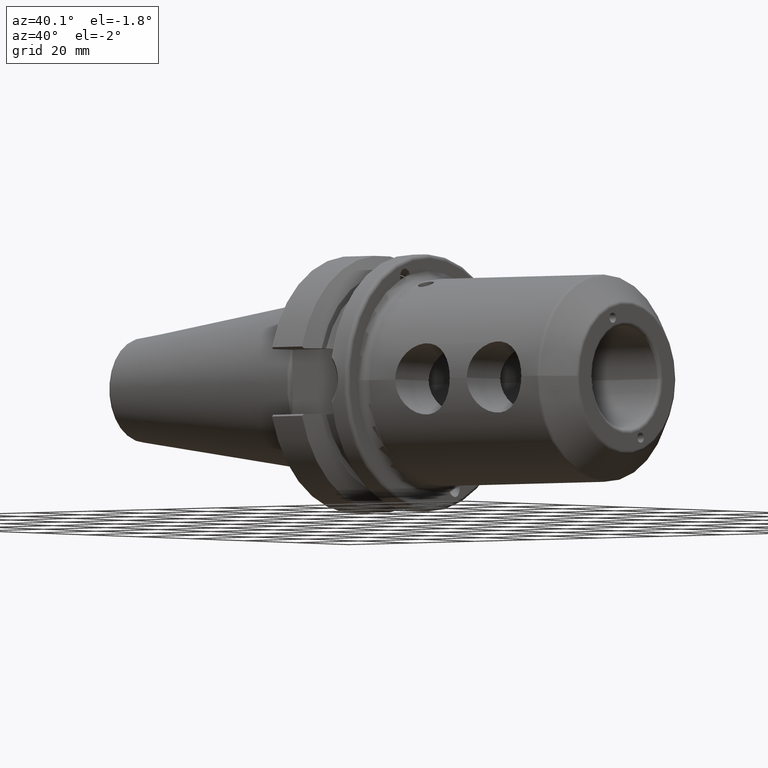
[diagram: clean part render]
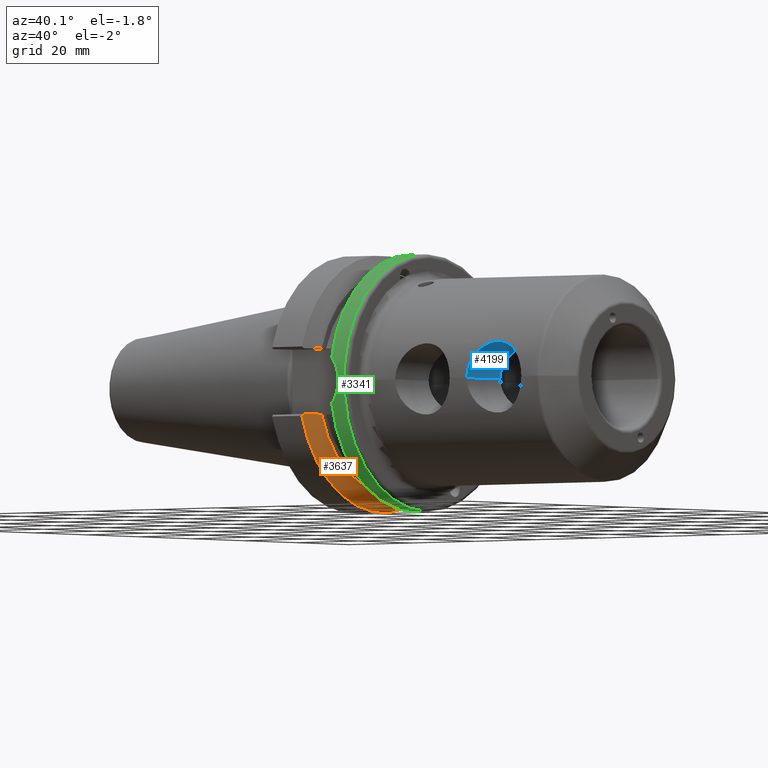
[diagram: same view with three faces highlighted in distinct colors, each labeled with its STEP entity id]
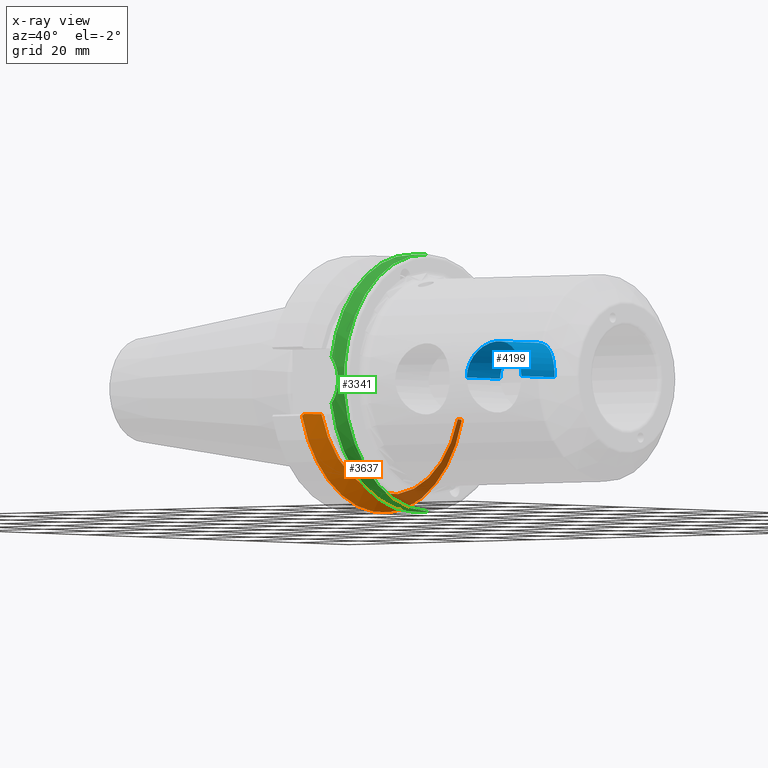
[diagram: x-ray of the same camera — body ghosted, the three highlighted faces saturated]
A machine part, auxiliary view with three faces highlighted in distinct colors.
The next image is the same camera in x-ray (body ghosted, the three faces saturated) — at least one of them is partly hidden behind the body in this view.
Their STEP definitions:

[orange] entity #3637 — the highlighted conical surface has half-angle 60 deg.
#999=CARTESIAN_POINT('',(1.41E1,-2.589378524176E1,-8.05E0));
#1000=CARTESIAN_POINT('',(1.386450341249E1,-2.632093406585E1,-8.05E0));
#1001=CARTESIAN_POINT('',(1.338588596161E1,-2.718719807101E1,-8.05E0));
#1002=CARTESIAN_POINT('',(1.264535505638E1,-2.852228716965E1,-8.05E0));
#1003=CARTESIAN_POINT('',(1.213636940407E1,-2.943672353446E1,-8.05E0));
#1004=CARTESIAN_POINT('',(1.187809346105E1,-2.99E1,-8.05E0));
#1006=CARTESIAN_POINT('',(1.41E1,0.E0,0.E0));
#1007=DIRECTION('',(1.E0,0.E0,0.E0));
#1008=DIRECTION('',(0.E0,-9.549178917964E-1,-2.968700387830E-1));
#1009=AXIS2_PLACEMENT_3D('',#1006,#1007,#1008);
#1011=CARTESIAN_POINT('',(1.187809346105E1,2.99E1,-8.05E0));
#1012=CARTESIAN_POINT('',(1.213608053432E1,2.943724168785E1,-8.05E0));
#1013=CARTESIAN_POINT('',(1.264468269184E1,2.852349654788E1,-8.05E0));
#1014=CARTESIAN_POINT('',(1.338523678300E1,2.718837129527E1,-8.05E0));
#1015=CARTESIAN_POINT('',(1.386422607045E1,2.632143711487E1,-8.05E0));
#1016=CARTESIAN_POINT('',(1.41E1,2.589378524176E1,-8.05E0));
#1018=CARTESIAN_POINT('',(1.187809346105E1,2.99E1,-8.05E0));
#1019=CARTESIAN_POINT('',(1.184412243022E1,2.994800919416E1,-8.098009194156E0));
#1020=CARTESIAN_POINT('',(1.177593456126E1,3.004428424075E1,-8.194284240747E0));
#1021=CARTESIAN_POINT('',(1.167291601044E1,3.018946614020E1,-8.339466140200E0));
#1022=CARTESIAN_POINT('',(1.160374493301E1,3.028676841650E1,-8.436768416504E0));
#1023=CARTESIAN_POINT('',(1.15690365E1,3.033554803451E1,-8.485548034509E0));
#1025=CARTESIAN_POINT('',(1.15690365E1,0.E0,0.E0));
#1026=DIRECTION('',(-1.E0,0.E0,0.E0));
#1027=DIRECTION('',(0.E0,9.630332709368E-1,-2.693824772860E-1));
#1028=AXIS2_PLACEMENT_3D('',#1025,#1026,#1027);
#1030=CARTESIAN_POINT('',(1.15690365E1,-3.033554803451E1,-8.485548034509E0));
#1031=CARTESIAN_POINT('',(1.162109299730E1,-3.026238725388E1,
-8.412387253883E0));
#1032=CARTESIAN_POINT('',(1.172465915984E1,-3.011663519535E1,
-8.266635195345E0));
#1033=CARTESIAN_POINT('',(1.182713113718E1,-2.997202195639E1,
-8.122021956386E0));
#1034=CARTESIAN_POINT('',(1.187809346105E1,-2.99E1,-8.05E0));
#2267=CARTESIAN_POINT('',(1.41E1,2.589378524176E1,-8.05E0));
#2269=VERTEX_POINT('',#2267);
#2363=VERTEX_POINT('',#1018);
#2364=VERTEX_POINT('',#1023);
#2379=CARTESIAN_POINT('',(1.15690365E1,-3.033554803451E1,-8.485548034509E0));
#2381=VERTEX_POINT('',#2379);
#2393=VERTEX_POINT('',#999);
#2394=VERTEX_POINT('',#1004);
#3621=CARTESIAN_POINT('',(1.283451825E1,0.E0,0.E0));
#3622=DIRECTION('',(-1.E0,0.E0,0.E0));
#3623=DIRECTION('',(0.E0,0.E0,-1.E0));
#3624=AXIS2_PLACEMENT_3D('',#3621,#3622,#3623);
#3625=CONICAL_SURFACE('',#3624,2.930812131295E1,6.E1);
#3626=ORIENTED_EDGE('',*,*,#3432,.F.);
#3628=ORIENTED_EDGE('',*,*,#3627,.T.);
#3630=ORIENTED_EDGE('',*,*,#3629,.F.);
#3632=ORIENTED_EDGE('',*,*,#3631,.T.);
#3633=ORIENTED_EDGE('',*,*,#3548,.T.);
#3634=ORIENTED_EDGE('',*,*,#3594,.T.);
#3635=EDGE_LOOP('',(#3626,#3628,#3630,#3632,#3633,#3634));
#3636=FACE_OUTER_BOUND('',#3635,.F.);
#3637=ADVANCED_FACE('',(#3636),#3625,.T.);
#1005=B_SPLINE_CURVE_WITH_KNOTS('',3,(#999,#1000,#1001,#1002,#1003,#1004),
.UNSPECIFIED.,.F.,.F.,(4,1,1,4),(0.E0,3.333333333333E-1,6.666666666667E-1,1.E0),
.UNSPECIFIED.);
#1010=CIRCLE('',#1009,2.711624262590E1);
#1017=B_SPLINE_CURVE_WITH_KNOTS('',3,(#1011,#1012,#1013,#1014,#1015,#1016),
.UNSPECIFIED.,.F.,.F.,(4,1,1,4),(0.E0,3.333333333333E-1,6.666666666667E-1,1.E0),
.UNSPECIFIED.);
#1024=B_SPLINE_CURVE_WITH_KNOTS('',3,(#1018,#1019,#1020,#1021,#1022,#1023),
.UNSPECIFIED.,.F.,.F.,(4,1,1,4),(0.E0,3.333333333333E-1,6.666666666667E-1,1.E0),
.UNSPECIFIED.);
#1029=CIRCLE('',#1028,3.15E1);
#1035=B_SPLINE_CURVE_WITH_KNOTS('',3,(#1030,#1031,#1032,#1033,#1034),
.UNSPECIFIED.,.F.,.F.,(4,1,4),(0.E0,5.E-1,1.E0),.UNSPECIFIED.);
#3432=EDGE_CURVE('',#2393,#2394,#1005,.T.);
#3548=EDGE_CURVE('',#2364,#2381,#1029,.T.);
#3594=EDGE_CURVE('',#2381,#2394,#1035,.T.);
#3627=EDGE_CURVE('',#2393,#2269,#1010,.T.);
#3629=EDGE_CURVE('',#2363,#2269,#1017,.T.);
#3631=EDGE_CURVE('',#2363,#2364,#1024,.T.);

[blue] entity #4199 — the highlighted cylindrical surface (edge-blend (fillet) strip) has radius 8.7312 mm, axis along (0, -1, 0).
#1558=CARTESIAN_POINT('',(6.016875E1,-2.54E1,0.E0));
#1559=CARTESIAN_POINT('',(6.016875E1,-2.54E1,5.471541523208E-1));
#1560=CARTESIAN_POINT('',(6.026601058927E1,-2.536620185117E1,1.637856000397E0));
#1561=CARTESIAN_POINT('',(6.077266413984E1,-2.519626685740E1,3.348794072300E0));
#1562=CARTESIAN_POINT('',(6.157529329447E1,-2.494625122253E1,4.849102851290E0));
#1563=CARTESIAN_POINT('',(6.262862986730E1,-2.465423278890E1,6.150742026221E0));
#1564=CARTESIAN_POINT('',(6.390297428901E1,-2.435777429886E1,7.224223509934E0));
#1565=CARTESIAN_POINT('',(6.539604849168E1,-2.408980908117E1,8.063716489680E0));
#1566=CARTESIAN_POINT('',(6.714359786386E1,-2.389512897658E1,8.615495260512E0));
#1567=CARTESIAN_POINT('',(6.885944495498E1,-2.383241776306E1,8.784367982431E0));
#1568=CARTESIAN_POINT('',(7.055647560547E1,-2.388836695680E1,8.633876915436E0));
#1569=CARTESIAN_POINT('',(7.230573553807E1,-2.407536904516E1,8.106075182592E0));
#1570=CARTESIAN_POINT('',(7.381932053991E1,-2.434146444873E1,7.278776410414E0));
#1571=CARTESIAN_POINT('',(7.512077461497E1,-2.464101741862E1,6.203903082927E0));
#1572=CARTESIAN_POINT('',(7.619621556213E1,-2.493768868428E1,4.894007680138E0));
#1573=CARTESIAN_POINT('',(7.701423603237E1,-2.519194748185E1,3.382899038663E0));
#1574=CARTESIAN_POINT('',(7.753084560921E1,-2.536510691937E1,1.660166932135E0));
#1575=CARTESIAN_POINT('',(7.763125E1,-2.54E1,5.552987864160E-1));
#1576=CARTESIAN_POINT('',(7.763125E1,-2.54E1,0.E0));
#1683=CARTESIAN_POINT('',(7.763125E1,-1.27E1,0.E0));
#1684=CARTESIAN_POINT('',(7.763125E1,-1.27E1,5.661935306312E-1));
#1685=CARTESIAN_POINT('',(7.752553783016E1,-1.262684798743E1,1.688087921948E0));
#1686=CARTESIAN_POINT('',(7.701024620202E1,-1.227815083603E1,3.383879836230E0));
#1687=CARTESIAN_POINT('',(7.622639412554E1,-1.177152905001E1,4.840683484220E0));
#1688=CARTESIAN_POINT('',(7.520780875832E1,-1.116052145721E1,6.109827587186E0));
#1689=CARTESIAN_POINT('',(7.396659197877E1,-1.050104614518E1,7.173649881206E0));
#1690=CARTESIAN_POINT('',(7.252148209032E1,-9.873121113103E0,8.005295476160E0));
#1691=CARTESIAN_POINT('',(7.088017759840E1,-9.383627672722E0,8.562817609221E0));
#1692=CARTESIAN_POINT('',(6.921688633217E1,-9.184130795490E0,8.770999244271E0));
#1693=CARTESIAN_POINT('',(6.770527928967E1,-9.253169994369E0,8.700442630746E0));
#1694=CARTESIAN_POINT('',(6.598363393472E1,-9.628184328064E0,8.292535803717E0));
#1695=CARTESIAN_POINT('',(6.444658735475E1,-1.021469726235E1,7.573215523381E0));
#1696=CARTESIAN_POINT('',(6.311272891154E1,-1.087389682952E1,6.595168803981E0));
#1697=CARTESIAN_POINT('',(6.217101972941E1,-1.140991332520E1,5.616297846714E0));
#1698=CARTESIAN_POINT('',(6.134881546596E1,-1.191454854009E1,4.466275673122E0));
#1699=CARTESIAN_POINT('',(6.067192503939E1,-1.235722012240E1,3.067847587523E0));
#1700=CARTESIAN_POINT('',(6.024790377623E1,-1.264528701165E1,1.486216618823E0));
#1701=CARTESIAN_POINT('',(6.016875E1,-1.27E1,4.920425485368E-1));
#1702=CARTESIAN_POINT('',(6.016875E1,-1.27E1,0.E0));
#1709=DIRECTION('',(0.E0,-1.E0,0.E0));
#1710=VECTOR('',#1709,1.27E1);
#1711=CARTESIAN_POINT('',(6.016875E1,-1.27E1,0.E0));
#1712=LINE('',#1711,#1710);
#1713=DIRECTION('',(0.E0,-1.E0,0.E0));
#1714=VECTOR('',#1713,1.27E1);
#1715=CARTESIAN_POINT('',(7.763125E1,-1.27E1,0.E0));
#1716=LINE('',#1715,#1714);
#2584=VERTEX_POINT('',#1683);
#2585=VERTEX_POINT('',#1702);
#2586=VERTEX_POINT('',#1558);
#2587=VERTEX_POINT('',#1576);
#4186=CARTESIAN_POINT('',(6.89E1,-1.306422506121E0,0.E0));
#4187=DIRECTION('',(0.E0,-1.E0,0.E0));
#4188=DIRECTION('',(-1.E0,0.E0,0.E0));
#4189=AXIS2_PLACEMENT_3D('',#4186,#4187,#4188);
#4190=CYLINDRICAL_SURFACE('',#4189,8.73125E0);
#4191=ORIENTED_EDGE('',*,*,#4174,.T.);
#4193=ORIENTED_EDGE('',*,*,#4192,.T.);
#4194=ORIENTED_EDGE('',*,*,#4091,.T.);
#4196=ORIENTED_EDGE('',*,*,#4195,.F.);
#4197=EDGE_LOOP('',(#4191,#4193,#4194,#4196));
#4198=FACE_OUTER_BOUND('',#4197,.F.);
#4199=ADVANCED_FACE('',(#4198),#4190,.F.);
#1577=B_SPLINE_CURVE_WITH_KNOTS('',3,(#1558,#1559,#1560,#1561,#1562,#1563,#1564,
#1565,#1566,#1567,#1568,#1569,#1570,#1571,#1572,#1573,#1574,#1575,#1576),
.UNSPECIFIED.,.F.,.F.,(4,1,1,1,1,1,1,1,1,1,1,1,1,1,1,1,4),(0.E0,6.25E-2,1.25E-1,
1.875E-1,2.5E-1,3.125E-1,3.75E-1,4.375E-1,5.E-1,5.625E-1,6.25E-1,6.875E-1,
7.5E-1,8.125E-1,8.75E-1,9.375E-1,1.E0),.UNSPECIFIED.);
#1703=B_SPLINE_CURVE_WITH_KNOTS('',3,(#1683,#1684,#1685,#1686,#1687,#1688,#1689,
#1690,#1691,#1692,#1693,#1694,#1695,#1696,#1697,#1698,#1699,#1700,#1701,#1702),
.UNSPECIFIED.,.F.,.F.,(4,1,1,1,1,1,1,1,1,1,1,1,1,1,1,1,1,4),(0.E0,
5.882352941176E-2,1.176470588235E-1,1.764705882353E-1,2.352941176471E-1,
2.941176470588E-1,3.529411764706E-1,4.117647058824E-1,4.705882352941E-1,
5.294117647059E-1,5.882352941176E-1,6.470588235294E-1,7.058823529412E-1,
7.647058823529E-1,8.235294117647E-1,8.823529411765E-1,9.411764705882E-1,1.E0),
.UNSPECIFIED.);
#4091=EDGE_CURVE('',#2586,#2587,#1577,.T.);
#4174=EDGE_CURVE('',#2584,#2585,#1703,.T.);
#4192=EDGE_CURVE('',#2585,#2586,#1712,.T.);
#4195=EDGE_CURVE('',#2584,#2587,#1716,.T.);

[green] entity #3341 — the highlighted cylindrical surface (partial cylindrical patch) has radius 31.5 mm, axis along (-1, 0, 0).
#700=CARTESIAN_POINT('',(2.16309635E1,-3.098871085802E1,-5.652415356123E0));
#701=CARTESIAN_POINT('',(2.205378386097E1,-3.106437626211E1,-5.237588564118E0));
#702=CARTESIAN_POINT('',(2.277967683744E1,-3.120635241929E1,-4.364993102037E0));
#703=CARTESIAN_POINT('',(2.355101398651E1,-3.137323042578E1,-2.945722313242E0));
#704=CARTESIAN_POINT('',(2.400111284241E1,-3.147666005267E1,-1.482143093960E0));
#705=CARTESIAN_POINT('',(2.414943639228E1,-3.151166826856E1,
-9.756501077962E-5));
#706=CARTESIAN_POINT('',(2.400114158492E1,-3.147666687228E1,1.481972597727E0));
#707=CARTESIAN_POINT('',(2.355114252106E1,-3.137325946351E1,2.945401291472E0));
#708=CARTESIAN_POINT('',(2.277984535178E1,-3.120638691219E1,4.364766902068E0));
#709=CARTESIAN_POINT('',(2.205386678081E1,-3.106439110095E1,5.237507211902E0));
#710=CARTESIAN_POINT('',(2.16309635E1,-3.098871085802E1,5.652415356123E0));
#712=CARTESIAN_POINT('',(2.6E1,0.E0,0.E0));
#713=DIRECTION('',(-1.E0,0.E0,0.E0));
#714=DIRECTION('',(0.E0,0.E0,-1.E0));
#715=AXIS2_PLACEMENT_3D('',#712,#713,#714);
#717=CARTESIAN_POINT('',(2.16309635E1,0.E0,0.E0));
#718=DIRECTION('',(1.E0,0.E0,0.E0));
#719=DIRECTION('',(0.E0,0.E0,1.E0));
#720=AXIS2_PLACEMENT_3D('',#717,#718,#719);
#744=CARTESIAN_POINT('',(2.16309635E1,-3.098871085802E1,-5.652415356123E0));
#746=CARTESIAN_POINT('',(2.16309635E1,0.E0,0.E0));
#747=DIRECTION('',(1.E0,0.E0,0.E0));
#748=DIRECTION('',(0.E0,-9.837685986673E-1,-1.794417573372E-1));
#749=AXIS2_PLACEMENT_3D('',#746,#747,#748);
#777=CARTESIAN_POINT('',(2.16309635E1,-3.098871085802E1,5.652415356123E0));
#945=DIRECTION('',(-1.E0,2.306190177167E-13,0.E0));
#946=VECTOR('',#945,4.3690365E0);
#947=CARTESIAN_POINT('',(2.6E1,-1.007582905999E-12,-3.15E1));
#948=LINE('',#947,#946);
#954=DIRECTION('',(-1.E0,-3.069721239902E-13,0.E0));
#955=VECTOR('',#954,4.3690365E0);
#956=CARTESIAN_POINT('',(2.6E1,1.339886535057E-12,3.15E1));
#957=LINE('',#956,#955);
#2287=CARTESIAN_POINT('',(2.6E1,0.E0,-3.15E1));
#2288=CARTESIAN_POINT('',(2.6E1,0.E0,3.15E1));
#2289=VERTEX_POINT('',#2287);
#2290=VERTEX_POINT('',#2288);
#2295=CARTESIAN_POINT('',(2.16309635E1,0.E0,-3.15E1));
#2296=VERTEX_POINT('',#2295);
#2297=CARTESIAN_POINT('',(2.16309635E1,0.E0,3.15E1));
#2298=VERTEX_POINT('',#2297);
#2400=VERTEX_POINT('',#777);
#2402=VERTEX_POINT('',#744);
#3323=CARTESIAN_POINT('',(0.E0,0.E0,0.E0));
#3324=DIRECTION('',(-1.E0,0.E0,0.E0));
#3325=DIRECTION('',(0.E0,0.E0,-1.E0));
#3326=AXIS2_PLACEMENT_3D('',#3323,#3324,#3325);
#3327=CYLINDRICAL_SURFACE('',#3326,3.15E1);
#3329=ORIENTED_EDGE('',*,*,#3328,.F.);
#3331=ORIENTED_EDGE('',*,*,#3330,.T.);
#3333=ORIENTED_EDGE('',*,*,#3332,.F.);
#3335=ORIENTED_EDGE('',*,*,#3334,.F.);
#3336=ORIENTED_EDGE('',*,*,#3313,.F.);
#3338=ORIENTED_EDGE('',*,*,#3337,.T.);
#3339=EDGE_LOOP('',(#3329,#3331,#3333,#3335,#3336,#3338));
#3340=FACE_OUTER_BOUND('',#3339,.F.);
#3341=ADVANCED_FACE('',(#3340),#3327,.T.);
#711=B_SPLINE_CURVE_WITH_KNOTS('',3,(#700,#701,#702,#703,#704,#705,#706,#707,
#708,#709,#710),.UNSPECIFIED.,.F.,.F.,(4,1,1,1,1,1,1,1,4),(0.E0,1.25E-1,2.5E-1,
3.75E-1,5.E-1,6.25E-1,7.5E-1,8.75E-1,1.E0),.UNSPECIFIED.);
#716=CIRCLE('',#715,3.15E1);
#721=CIRCLE('',#720,3.15E1);
#750=CIRCLE('',#749,3.15E1);
#3313=EDGE_CURVE('',#2289,#2290,#716,.T.);
#3328=EDGE_CURVE('',#2402,#2296,#750,.T.);
#3330=EDGE_CURVE('',#2402,#2400,#711,.T.);
#3332=EDGE_CURVE('',#2298,#2400,#721,.T.);
#3334=EDGE_CURVE('',#2290,#2298,#957,.T.);
#3337=EDGE_CURVE('',#2289,#2296,#948,.T.);